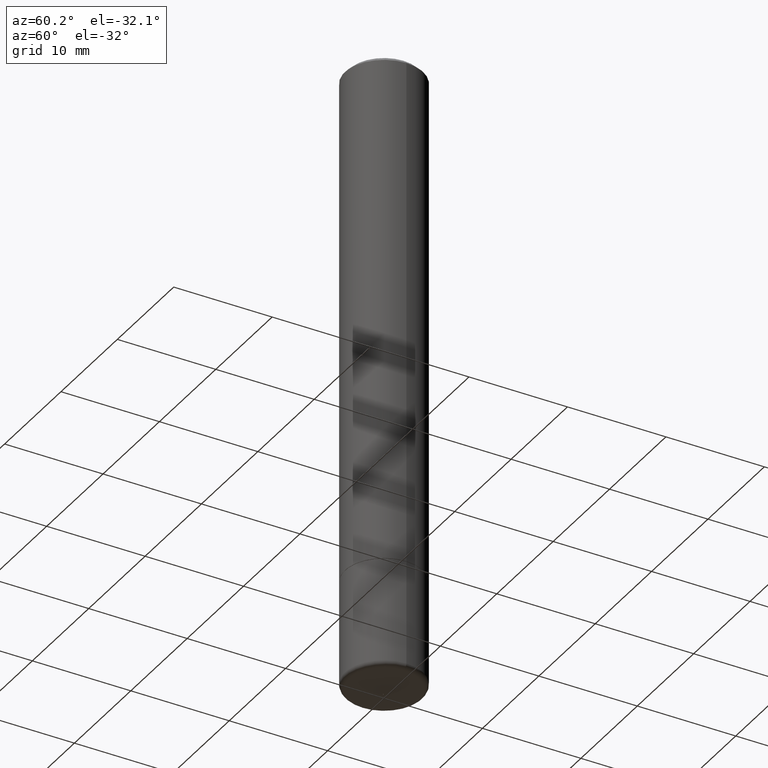
[diagram: clean part render]
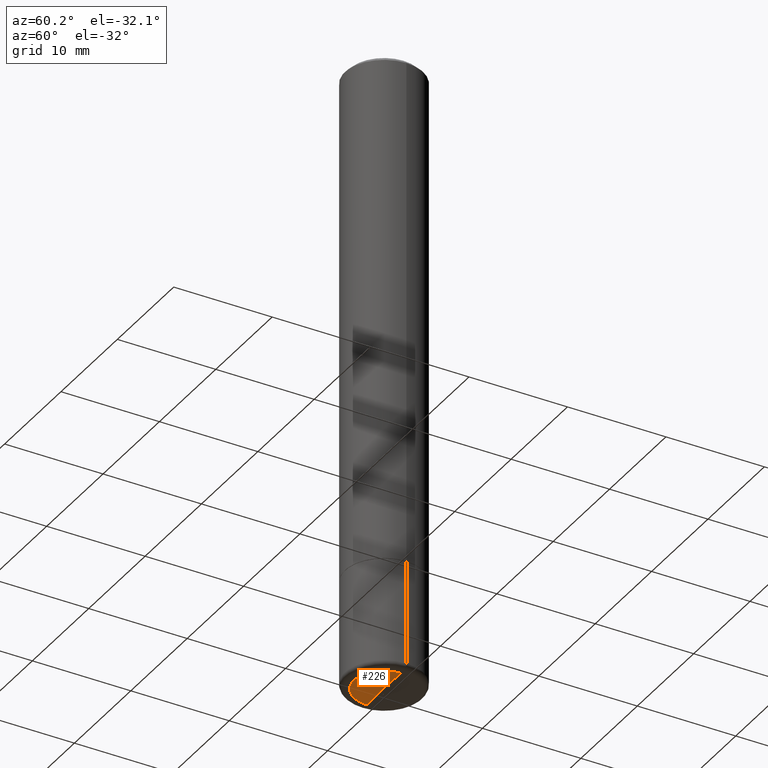
[diagram: same view with one face highlighted and labeled with its STEP entity id]
A machine part, auxiliary view. The second image highlights one B-rep face of the part: STEP entity #226.
In plain terms, the highlighted conical surface has half-angle 88 deg.
Its self-contained STEP definition (entity closure, byte-faithful):
#29 = VECTOR ( 'NONE', #43, 39.37007874015748143 ) ;
#40 = AXIS2_PLACEMENT_3D ( 'NONE', #50, #204, #166 ) ;
#43 = DIRECTION ( 'NONE',  ( -0.9993908270190957621, 6.856857904024562781E-15, -0.03489949670249930386 ) ) ;
#46 = LINE ( 'NONE', #279, #29 ) ;
#50 = CARTESIAN_POINT ( 'NONE',  ( 6.113316349644044208E-29, -8.728195550579831030E-15, -2.499854561293974875 ) ) ;
#61 = DIRECTION ( 'NONE',  ( 0.9993908270190957621, -6.978169709227536755E-15, -0.03489949670249930386 ) ) ;
#70 = VECTOR ( 'NONE', #61, 39.37007874015748143 ) ;
#76 = VERTEX_POINT ( 'NONE', #98 ) ;
#92 = EDGE_LOOP ( 'NONE', ( #446, #162, #132 ) ) ;
#96 = LINE ( 'NONE', #173, #70 ) ;
#98 = CARTESIAN_POINT ( 'NONE',  ( -0.1194098442900327905, -7.894361064554203421E-15, -2.499854561293974875 ) ) ;
#131 = EDGE_CURVE ( 'NONE', #427, #205, #96, .T. ) ;
#132 = ORIENTED_EDGE ( 'NONE', *, *, #451, .F. ) ;
#146 = CARTESIAN_POINT ( 'NONE',  ( 6.113316349644044208E-29, -8.728195550579831030E-15, -2.499854561293974875 ) ) ;
#162 = ORIENTED_EDGE ( 'NONE', *, *, #131, .T. ) ;
#166 = DIRECTION ( 'NONE',  ( 1.000000000000000000, -6.982962677686268288E-15, 0.000000000000000000 ) ) ;
#173 = CARTESIAN_POINT ( 'NONE',  ( 0.1194098442900327905, -9.547406548245810886E-15, -2.499854561293974875 ) ) ;
#200 = CONICAL_SURFACE ( 'NONE', #264, 0.1194098442900327905, 1.535889741755011695 ) ;
#204 = DIRECTION ( 'NONE',  ( -2.445468806185136597E-29, 3.491481338843145583E-15, 1.000000000000000000 ) ) ;
#205 = VERTEX_POINT ( 'NONE', #329 ) ;
#226 = ADVANCED_FACE ( 'NONE', ( #477 ), #200, .F. ) ;
#256 = CIRCLE ( 'NONE', #40, 0.1194098442900327905 ) ;
#259 = DIRECTION ( 'NONE',  ( -1.000000000000000000, 6.982962677686268288E-15, 0.000000000000000000 ) ) ;
#264 = AXIS2_PLACEMENT_3D ( 'NONE', #146, #436, #259 ) ;
#279 = CARTESIAN_POINT ( 'NONE',  ( -0.1194098442900327905, -7.894361064554203421E-15, -2.499854561293974875 ) ) ;
#329 = CARTESIAN_POINT ( 'NONE',  ( 0.1194098442900327905, -9.547406548245810886E-15, -2.499854561293974875 ) ) ;
#416 = EDGE_CURVE ( 'NONE', #427, #76, #46, .T. ) ;
#423 = CARTESIAN_POINT ( 'NONE',  ( 6.103119029258668310E-29, -8.713636479639446360E-15, -2.495684677646476946 ) ) ;
#427 = VERTEX_POINT ( 'NONE', #423 ) ;
#436 = DIRECTION ( 'NONE',  ( 2.445468806185136597E-29, -3.491481338843145583E-15, -1.000000000000000000 ) ) ;
#446 = ORIENTED_EDGE ( 'NONE', *, *, #416, .F. ) ;
#451 = EDGE_CURVE ( 'NONE', #76, #205, #256, .T. ) ;
#477 = FACE_OUTER_BOUND ( 'NONE', #92, .T. ) ;